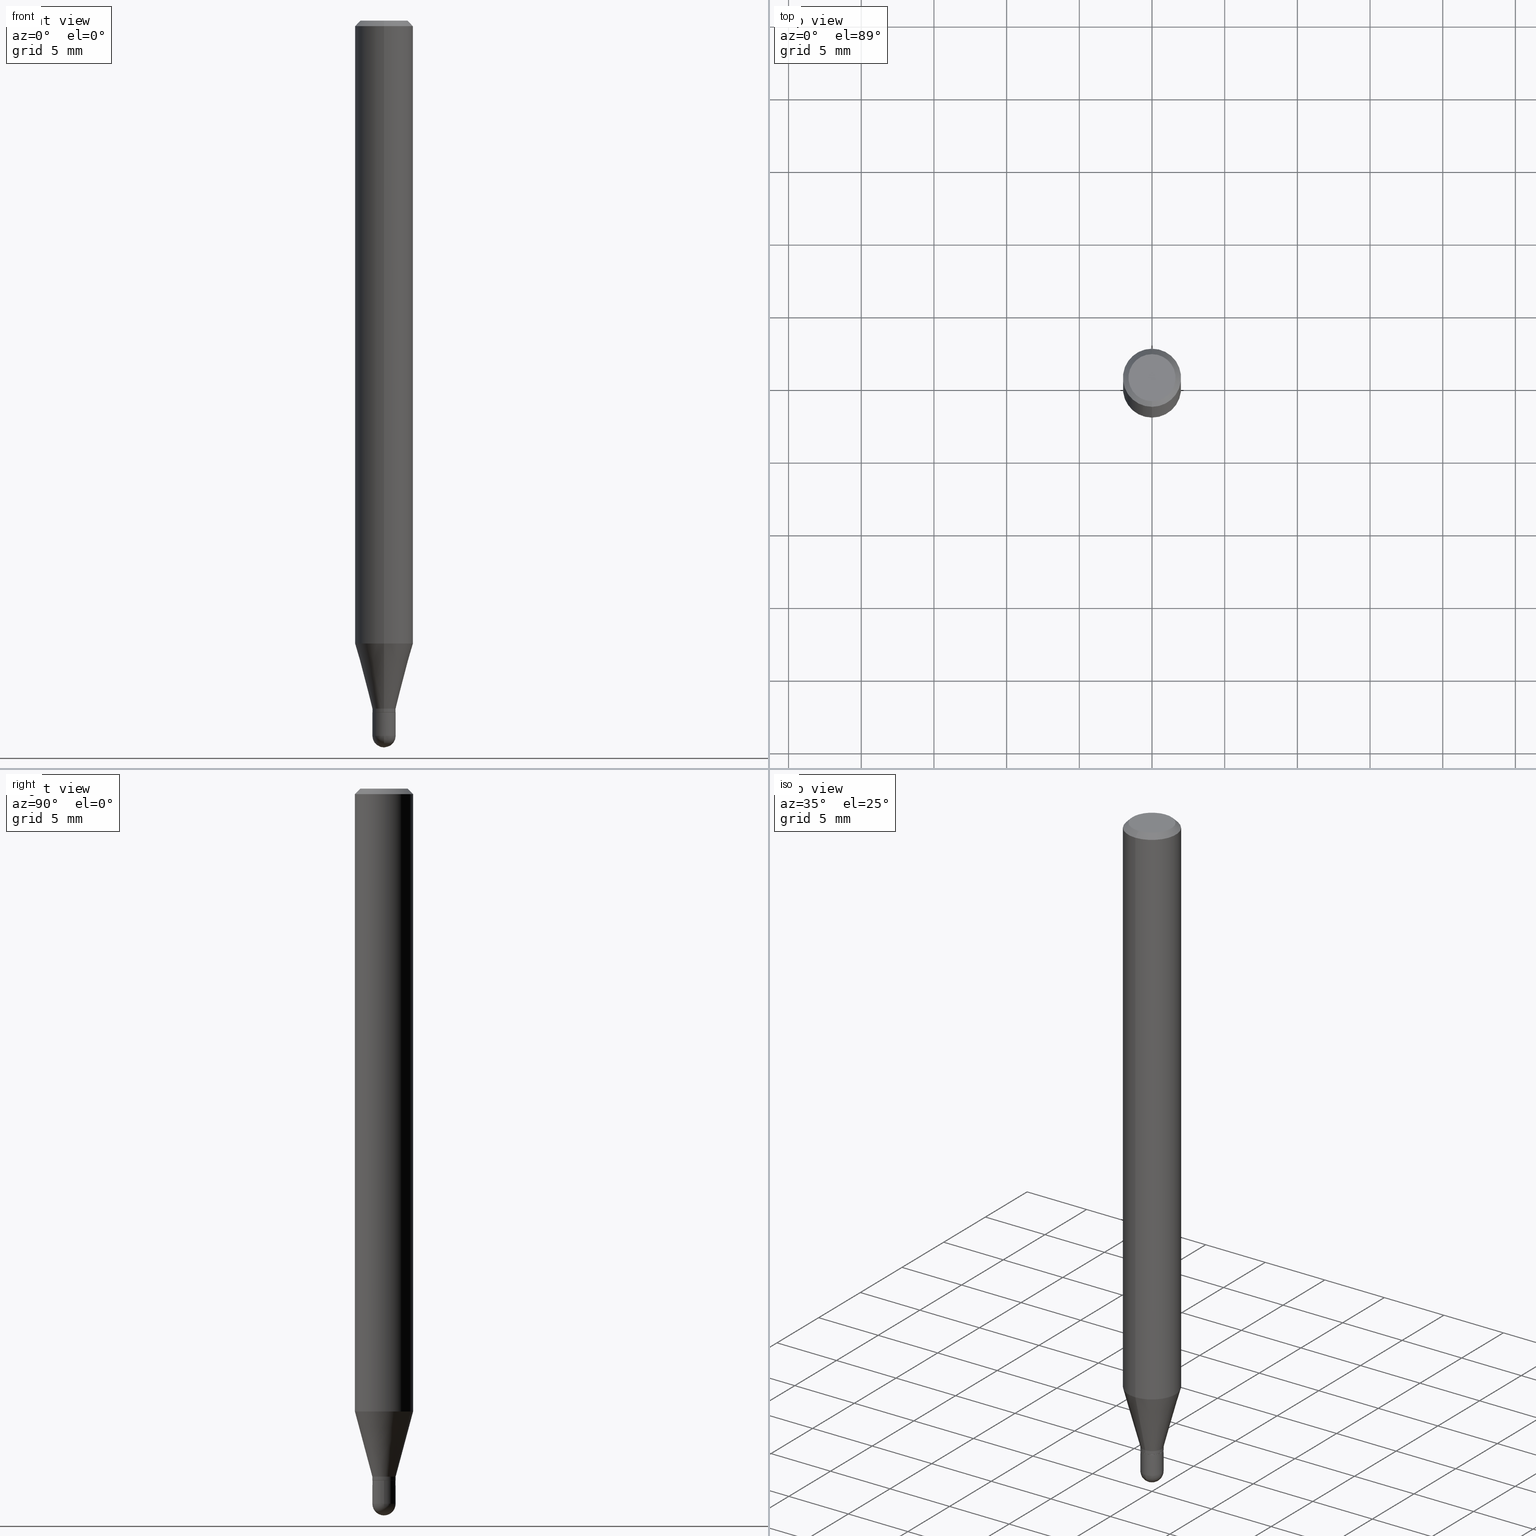
[diagram: canonical four-view strip — front | top / right | iso, engineering-drawing reading convention]
A machine part, canonical four-view strip (front | top / right | iso — engineering-drawing reading convention). The complete STEP part file that produces these views, byte-faithful:
ISO-10303-21;
HEADER;
FILE_DESCRIPTION (( 'STEP AP203' ),
    '1' );
FILE_NAME ('02015.STEP',
    '2024-03-07T19:55:30',
    ( '' ),
    ( '' ),
    'SwSTEP 2.0',
    'SolidWorks 2023',
    '' );
FILE_SCHEMA (( 'CONFIG_CONTROL_DESIGN' ));
ENDSEC;

DATA;
#1 = CIRCLE ( 'NONE', #275, 0.06375000000000000111 ) ;
#2 = DIRECTION ( 'NONE',  ( -6.982962677686264344E-15, -1.000000000000000000, 3.469013325287953293E-15 ) ) ;
#3 = LINE ( 'NONE', #103, #303 ) ;
#4 = APPLICATION_PROTOCOL_DEFINITION ( 'international standard', 'config_control_design', 1994, #453 ) ;
#5 = CARTESIAN_POINT ( 'NONE',  ( 4.125821572559714249E-29, -5.890800079852744300E-15, -1.687160599342371059 ) ) ;
#6 = PERSON_AND_ORGANIZATION ( #81, #316 ) ;
#7 = ORIENTED_EDGE ( 'NONE', *, *, #272, .T. ) ;
#8 = DATE_AND_TIME ( #90, #508 ) ;
#9 = ORIENTED_EDGE ( 'NONE', *, *, #473, .F. ) ;
#10 = CARTESIAN_POINT ( 'NONE',  ( 0.000000000000000000, 0.000000000000000000, 0.000000000000000000 ) ) ;
#11 = CARTESIAN_POINT ( 'NONE',  ( 2.202682480856768593E-16, 0.03099999999999345640, -1.874000000000000110 ) ) ;
#12 = AXIS2_PLACEMENT_3D ( 'NONE', #80, #263, #504 ) ;
#13 = AXIS2_PLACEMENT_3D ( 'NONE', #391, #201, #87 ) ;
#14 = ORIENTED_EDGE ( 'NONE', *, *, #306, .T. ) ;
#15 = DIRECTION ( 'NONE',  ( -6.982962677686265922E-15, -1.000000000000000000, 0.000000000000000000 ) ) ;
#16 = DATE_AND_TIME ( #111, #109 ) ;
#17 = DIRECTION ( 'NONE',  ( 1.000000000000000000, -6.982962677686255667E-15, 0.000000000000000000 ) ) ;
#18 = PERSON_AND_ORGANIZATION ( #81, #316 ) ;
#19 = FACE_OUTER_BOUND ( 'NONE', #37, .T. ) ;
#20 = DIRECTION ( 'NONE',  ( -2.445423141204159656E-29, 3.491546733694993225E-15, 1.000000000000000000 ) ) ;
#21 = VECTOR ( 'NONE', #170, 39.37007874015748143 ) ;
#22 = EDGE_LOOP ( 'NONE', ( #132, #7, #301, #9 ) ) ;
#23 = CARTESIAN_POINT ( 'NONE',  ( -0.03150000000000000022, -6.429196729401182217E-15, -1.874000000000000110 ) ) ;
#24 = EDGE_CURVE ( 'NONE', #384, #142, #265, .T. ) ;
#25 = ORIENTED_EDGE ( 'NONE', *, *, #318, .F. ) ;
#26 = DIRECTION ( 'NONE',  ( -2.445423141204159656E-29, 3.491546733694993619E-15, 1.000000000000000000 ) ) ;
#27 = ORIENTED_EDGE ( 'NONE', *, *, #54, .F. ) ;
#28 = CARTESIAN_POINT ( 'NONE',  ( 0.000000000000000000, 0.000000000000000000, 0.000000000000000000 ) ) ;
#29 = DIRECTION ( 'NONE',  ( -1.000000000000000000, 6.982962677686265922E-15, -4.876176775795935793E-29 ) ) ;
#30 = VECTOR ( 'NONE', #383, 39.37007874015748143 ) ;
#31 = AXIS2_PLACEMENT_3D ( 'NONE', #124, #400, #52 ) ;
#32 = DIRECTION ( 'NONE',  ( -6.982962677686265922E-15, -1.000000000000000000, 0.000000000000000000 ) ) ;
#33 = CARTESIAN_POINT ( 'NONE',  ( 4.125821572559714249E-29, -5.890800079852744300E-15, -1.687160599342371059 ) ) ;
#34 = CYLINDRICAL_SURFACE ( 'NONE', #115, 0.07875000000000000056 ) ;
#35 = DIRECTION ( 'NONE',  ( 1.000000000000000000, -6.982962677686265922E-15, 4.883557194083112340E-29 ) ) ;
#36 = APPLICATION_PROTOCOL_DEFINITION ( 'international standard', 'config_control_design', 1994, #128 ) ;
#37 = EDGE_LOOP ( 'NONE', ( #64, #253, #444, #296, #104 ) ) ;
#38 = CONICAL_SURFACE ( 'NONE', #315, 0.03099999999999999978, 0.7853981633974739252 ) ;
#39 = VECTOR ( 'NONE', #273, 39.37007874015748143 ) ;
#40 = ORIENTED_EDGE ( 'NONE', *, *, #160, .T. ) ;
#41 = DIMENSIONAL_EXPONENTS ( 1.000000000000000000, 0.000000000000000000, 0.000000000000000000, 0.000000000000000000, 0.000000000000000000, 0.000000000000000000, 0.000000000000000000 ) ;
#42 = ADVANCED_FACE ( 'NONE', ( #509 ), #34, .T. ) ;
#43 = CARTESIAN_POINT ( 'NONE',  ( 5.595524044111203155E-16, 0.07874999999999994504, -0.01500000000000004108 ) ) ;
#44 = AXIS2_PLACEMENT_3D ( 'NONE', #179, #333, #317 ) ;
#45 = AXIS2_PLACEMENT_3D ( 'NONE', #209, #176, #330 ) ;
#46 = EDGE_CURVE ( 'NONE', #206, #414, #467, .T. ) ;
#47 = DIRECTION ( 'NONE',  ( -6.982962677686264344E-15, -1.000000000000000000, 3.496114991891765576E-15 ) ) ;
#48 = PERSON_AND_ORGANIZATION ( #81, #316 ) ;
#49 = EDGE_CURVE ( 'NONE', #320, #168, #3, .T. ) ;
#50 = DIRECTION ( 'NONE',  ( -6.982962677686265133E-15, -1.000000000000000000, 0.000000000000000000 ) ) ;
#51 = CARTESIAN_POINT ( 'NONE',  ( 4.582808542790945516E-29, -6.543036028992054911E-15, -1.874000000000000110 ) ) ;
#52 = DIRECTION ( 'NONE',  ( -6.982962677686265133E-15, -1.000000000000000000, 0.000000000000000000 ) ) ;
#53 = COORDINATED_UNIVERSAL_TIME_OFFSET ( 5, 0, .BEHIND. ) ;
#54 = EDGE_CURVE ( 'NONE', #485, #196, #145, .T. ) ;
#55 = ORIENTED_EDGE ( 'NONE', *, *, #377, .T. ) ;
#56 = CARTESIAN_POINT ( 'NONE',  ( -5.499083108677930499E-16, -0.07875000000000004219, -0.01499999999999948944 ) ) ;
#57 = ADVANCED_FACE ( 'NONE', ( #299 ), #345, .F. ) ;
#58 = DIRECTION ( 'NONE',  ( -2.445423141204159656E-29, 3.491546733694993619E-15, 1.000000000000000000 ) ) ;
#59 = CLOSED_SHELL ( 'NONE', ( #282, #246, #462, #42, #390, #393, #197, #494, #343, #57, #376, #229 ) ) ;
#60 = AXIS2_PLACEMENT_3D ( 'NONE', #349, #220, #29 ) ;
#61 = DIRECTION ( 'NONE',  ( 6.982962677686265922E-15, 1.000000000000000000, -3.491546733694993225E-15 ) ) ;
#62 = ORIENTED_EDGE ( 'NONE', *, *, #468, .F. ) ;
#63 = CARTESIAN_POINT ( 'NONE',  ( 5.595524044111199211E-16, 0.07874999999999408862, -1.687160599342371503 ) ) ;
#64 = ORIENTED_EDGE ( 'NONE', *, *, #328, .T. ) ;
#65 = CARTESIAN_POINT ( 'NONE',  ( 4.557046023633951500E-29, -6.506497338240621672E-15, -1.863499999999999934 ) ) ;
#66 = ORIENTED_EDGE ( 'NONE', *, *, #511, .F. ) ;
#67 = CARTESIAN_POINT ( 'NONE',  ( 4.582722966616595264E-29, -6.543158578944418780E-15, -1.874000000000000110 ) ) ;
#68 = PERSON_AND_ORGANIZATION_ROLE ( 'classification_officer' ) ;
#69 = CIRCLE ( 'NONE', #498, 0.03150000000000000716 ) ;
#70 = ORIENTED_EDGE ( 'NONE', *, *, #226, .T. ) ;
#71 = PRODUCT_DEFINITION_FORMATION_WITH_SPECIFIED_SOURCE ( 'ANY', '', #309, .NOT_KNOWN. ) ;
#72 = ORIENTED_EDGE ( 'NONE', *, *, #148, .F. ) ;
#73 = DIRECTION ( 'NONE',  ( -1.000000000000000000, 6.982962677686265922E-15, -4.883557194083112340E-29 ) ) ;
#74 = CARTESIAN_POINT ( 'NONE',  ( 4.582722966616595264E-29, -6.543158578944418780E-15, -1.874000000000000110 ) ) ;
#75 = EDGE_CURVE ( 'NONE', #507, #384, #395, .T. ) ;
#76 = CIRCLE ( 'NONE', #279, 0.03150000000000000022 ) ;
#77 = LOCAL_TIME ( 14, 55, 30.00000000000000000, #53 ) ;
#78 = ADVANCED_FACE ( 'NONE', ( #266 ), #295, .T. ) ;
#79 = ORIENTED_EDGE ( 'NONE', *, *, #149, .T. ) ;
#80 = CARTESIAN_POINT ( 'NONE',  ( 4.734179303769695037E-29, -6.766856990756487063E-15, -1.937000000000000055 ) ) ;
#81 = PERSON ( 'UNSPECIFIED', 'UNSPECIFIED', 'UNSPECIFIED', ('UNSPECIFIED'), ('UNSPECIFIED'), ('UNSPECIFIED') ) ;
#82 = PLANE ( 'NONE',  #60 ) ;
#83 = AXIS2_PLACEMENT_3D ( 'NONE', #10, #399, #97 ) ;
#84 = CIRCLE ( 'NONE', #472, 0.03150000000000000716 ) ;
#85 = CARTESIAN_POINT ( 'NONE',  ( -0.03150000000000000716, 2.238209617644316094E-16, -1.549464553430295502E-30 ) ) ;
#86 = ORIENTED_EDGE ( 'NONE', *, *, #94, .F. ) ;
#87 = DIRECTION ( 'NONE',  ( 6.982962677686264344E-15, 1.000000000000000000, -3.496114991891765576E-15 ) ) ;
#88 = AXIS2_PLACEMENT_3D ( 'NONE', #337, #73, #373 ) ;
#89 = AXIS2_PLACEMENT_3D ( 'NONE', #354, #233, #163 ) ;
#90 = CALENDAR_DATE ( 2024, 7, 3 ) ;
#91 = ORIENTED_EDGE ( 'NONE', *, *, #24, .T. ) ;
#92 = LINE ( 'NONE', #102, #108 ) ;
#93 = COORDINATED_UNIVERSAL_TIME_OFFSET ( 5, 0, .BEHIND. ) ;
#94 = EDGE_CURVE ( 'NONE', #401, #321, #463, .T. ) ;
#95 = CC_DESIGN_PERSON_AND_ORGANIZATION_ASSIGNMENT ( #281, #439, ( #71 ) ) ;
#96 =( NAMED_UNIT ( * ) SI_UNIT ( $, .STERADIAN. ) SOLID_ANGLE_UNIT ( ) );
#97 = DIRECTION ( 'NONE',  ( -6.982962677686265922E-15, -1.000000000000000000, 3.491546733694993619E-15 ) ) ;
#98 = CARTESIAN_POINT ( 'NONE',  ( 3.668134711806182014E-31, -5.237320100542408955E-17, -0.01499999999999976526 ) ) ;
#99 = CIRCLE ( 'NONE', #223, 0.07875000000000000056 ) ;
#100 = DATE_AND_TIME ( #292, #195 ) ;
#101 = ORIENTED_EDGE ( 'NONE', *, *, #435, .F. ) ;
#102 = CARTESIAN_POINT ( 'NONE',  ( -2.199633243470712885E-16, -0.03150000000000643258, -1.863499999999999934 ) ) ;
#103 = CARTESIAN_POINT ( 'NONE',  ( 0.03150000000000000716, -2.199633243471174122E-16, 1.535995684375720062E-30 ) ) ;
#104 = ORIENTED_EDGE ( 'NONE', *, *, #418, .T. ) ;
#105 = EDGE_LOOP ( 'NONE', ( #441, #203, #40, #250 ) ) ;
#106 = DIRECTION ( 'NONE',  ( 1.000000000000000000, -6.982962677686255667E-15, 0.000000000000000000 ) ) ;
#107 = ORIENTED_EDGE ( 'NONE', *, *, #318, .T. ) ;
#108 = VECTOR ( 'NONE', #402, 39.37007874015748854 ) ;
#109 = LOCAL_TIME ( 14, 55, 30.00000000000000000, #323 ) ;
#110 = FACE_OUTER_BOUND ( 'NONE', #370, .T. ) ;
#111 = CALENDAR_DATE ( 2024, 7, 3 ) ;
#112 = FACE_OUTER_BOUND ( 'NONE', #361, .T. ) ;
#113 = DIRECTION ( 'NONE',  ( -2.445468806185136877E-29, 3.491481338843145188E-15, 1.000000000000000000 ) ) ;
#114 = CARTESIAN_POINT ( 'NONE',  ( 4.581500255045993394E-29, -6.541412805577571825E-15, -1.873500000000000165 ) ) ;
#115 = AXIS2_PLACEMENT_3D ( 'NONE', #155, #347, #387 ) ;
#116 = CARTESIAN_POINT ( 'NONE',  ( 4.734179303769695037E-29, -6.766856990756487063E-15, -1.937000000000000055 ) ) ;
#117 = MECHANICAL_CONTEXT ( 'NONE', #128, 'mechanical' ) ;
#118 = DIRECTION ( 'NONE',  ( -2.445468806185136597E-29, 3.491481338843145583E-15, 1.000000000000000000 ) ) ;
#119 = AXIS2_PLACEMENT_3D ( 'NONE', #421, #182, #335 ) ;
#120 = CIRCLE ( 'NONE', #89, 0.03149999999999993083 ) ;
#121 = DIRECTION ( 'NONE',  ( -2.445468806185136597E-29, 3.491481338843145583E-15, 1.000000000000000000 ) ) ;
#122 = CC_DESIGN_DATE_AND_TIME_ASSIGNMENT ( #355, #165, ( #298 ) ) ;
#123 = CALENDAR_DATE ( 2024, 7, 3 ) ;
#124 = CARTESIAN_POINT ( 'NONE',  ( 4.557046023633951500E-29, -6.506497338240621672E-15, -1.863499999999999934 ) ) ;
#125 = COORDINATED_UNIVERSAL_TIME_OFFSET ( 5, 0, .BEHIND. ) ;
#126 = AXIS2_PLACEMENT_3D ( 'NONE', #351, #356, #47 ) ;
#127 = PERSON_AND_ORGANIZATION_ROLE ( 'creator' ) ;
#128 = APPLICATION_CONTEXT ( 'configuration controlled 3d designs of mechanical parts and assemblies' ) ;
#129 = CYLINDRICAL_SURFACE ( 'NONE', #479, 0.03149999999999992389 ) ;
#130 = ADVANCED_FACE ( 'NONE', ( #227 ), #302, .T. ) ;
#131 =( LENGTH_UNIT ( ) NAMED_UNIT ( * ) SI_UNIT ( $, .METRE. ) );
#132 = ORIENTED_EDGE ( 'NONE', *, *, #319, .F. ) ;
#133 = DIRECTION ( 'NONE',  ( -6.982962677686265133E-15, -1.000000000000000000, 0.000000000000000000 ) ) ;
#134 = DIRECTION ( 'NONE',  ( 2.445423141204159656E-29, -3.491546733694993619E-15, -1.000000000000000000 ) ) ;
#135 = VERTEX_POINT ( 'NONE', #417 ) ;
#136 = LINE ( 'NONE', #325, #362 ) ;
#137 = CARTESIAN_POINT ( 'NONE',  ( 2.238209617644760322E-16, 0.03149999999999327643, -1.873500000000000165 ) ) ;
#138 = AXIS2_PLACEMENT_3D ( 'NONE', #367, #371, #15 ) ;
#139 = SECURITY_CLASSIFICATION ( '', '', #242 ) ;
#140 = CYLINDRICAL_SURFACE ( 'NONE', #339, 0.03150000000000000716 ) ;
#141 = EDGE_CURVE ( 'NONE', #447, #178, #379, .T. ) ;
#142 = VERTEX_POINT ( 'NONE', #153 ) ;
#143 = FACE_OUTER_BOUND ( 'NONE', #437, .T. ) ;
#144 = ORIENTED_EDGE ( 'NONE', *, *, #300, .T. ) ;
#145 = LINE ( 'NONE', #261, #423 ) ;
#146 = LINE ( 'NONE', #342, #274 ) ;
#147 = VECTOR ( 'NONE', #20, 39.37007874015748143 ) ;
#148 = EDGE_CURVE ( 'NONE', #135, #332, #338, .T. ) ;
#149 = EDGE_CURVE ( 'NONE', #321, #401, #490, .T. ) ;
#150 = CARTESIAN_POINT ( 'NONE',  ( -4.888104823412213911E-16, -0.06375000000000000111, 4.576885571078046976E-16 ) ) ;
#151 = DIRECTION ( 'NONE',  ( 0.000000000000000000, 0.000000000000000000, 1.000000000000000000 ) ) ;
#152 = DIRECTION ( 'NONE',  ( -2.445423141204159656E-29, 3.491546733694993619E-15, 1.000000000000000000 ) ) ;
#153 = CARTESIAN_POINT ( 'NONE',  ( -2.199633243470712885E-16, -0.03150000000000643258, -1.863499999999999934 ) ) ;
#154 = DIRECTION ( 'NONE',  ( -2.445423141204159656E-29, 3.491546733694993619E-15, 1.000000000000000000 ) ) ;
#155 = CARTESIAN_POINT ( 'NONE',  ( 0.000000000000000000, 0.000000000000000000, 0.000000000000000000 ) ) ;
#156 = VECTOR ( 'NONE', #305, 39.37007874015748143 ) ;
#157 = DIRECTION ( 'NONE',  ( 1.000000000000000000, 0.000000000000000000, 0.000000000000000000 ) ) ;
#158 = CARTESIAN_POINT ( 'NONE',  ( 4.975360907851465623E-16, 0.06375000000000000111, 1.251634856169309859E-17 ) ) ;
#159 = EDGE_CURVE ( 'NONE', #135, #416, #327, .T. ) ;
#160 = EDGE_CURVE ( 'NONE', #447, #414, #146, .T. ) ;
#161 = AXIS2_PLACEMENT_3D ( 'NONE', #452, #420, #465 ) ;
#162 =( GEOMETRIC_REPRESENTATION_CONTEXT ( 3 ) GLOBAL_UNCERTAINTY_ASSIGNED_CONTEXT ( ( #344 ) ) GLOBAL_UNIT_ASSIGNED_CONTEXT ( ( #208, #285, #96 ) ) REPRESENTATION_CONTEXT ( 'NONE', 'WORKASPACE' ) );
#163 = DIRECTION ( 'NONE',  ( -6.982962677686265133E-15, -1.000000000000000000, 0.000000000000000000 ) ) ;
#164 = DIRECTION ( 'NONE',  ( -2.445423141204159656E-29, 3.491546733694993619E-15, 1.000000000000000000 ) ) ;
#165 = DATE_TIME_ROLE ( 'creation_date' ) ;
#166 = ORIENTED_EDGE ( 'NONE', *, *, #272, .F. ) ;
#167 = ADVANCED_FACE ( 'NONE', ( #110 ), #375, .T. ) ;
#168 = VERTEX_POINT ( 'NONE', #501 ) ;
#169 = LINE ( 'NONE', #244, #147 ) ;
#170 = DIRECTION ( 'NONE',  ( 5.024295867788190974E-15, 0.7071067811865681119, 0.7071067811865270336 ) ) ;
#171 = ORIENTED_EDGE ( 'NONE', *, *, #46, .F. ) ;
#172 = CARTESIAN_POINT ( 'NONE',  ( 2.238209617644766238E-16, 0.03149999999999342215, -1.863499999999999934 ) ) ;
#173 = ORIENTED_EDGE ( 'NONE', *, *, #306, .F. ) ;
#174 = MANIFOLD_SOLID_BREP ( 'Body-Move/Copy2[1]', #471 ) ;
#175 = FACE_OUTER_BOUND ( 'NONE', #398, .T. ) ;
#176 = DIRECTION ( 'NONE',  ( -2.445468806185136597E-29, 3.491481338843145583E-15, 1.000000000000000000 ) ) ;
#177 = AXIS2_PLACEMENT_3D ( 'NONE', #276, #118, #431 ) ;
#178 = VERTEX_POINT ( 'NONE', #150 ) ;
#179 = CARTESIAN_POINT ( 'NONE',  ( 0.000000000000000000, 0.000000000000000000, 0.000000000000000000 ) ) ;
#180 = APPROVAL_STATUS ( 'not_yet_approved' ) ;
#181 = ORIENTED_EDGE ( 'NONE', *, *, #149, .F. ) ;
#182 = DIRECTION ( 'NONE',  ( -1.000000000000000000, 7.105427357601001070E-15, -4.926315508542082329E-29 ) ) ;
#183 = CC_DESIGN_PERSON_AND_ORGANIZATION_ASSIGNMENT ( #48, #357, ( #298 ) ) ;
#184 = EDGE_LOOP ( 'NONE', ( #171, #243, #505, #66 ) ) ;
#185 = DIRECTION ( 'NONE',  ( 1.000000000000000000, -6.982962677686265133E-15, 4.876176775795935793E-29 ) ) ;
#186 = AXIS2_PLACEMENT_3D ( 'NONE', #51, #483, #106 ) ;
#187 = ORIENTED_EDGE ( 'NONE', *, *, #160, .F. ) ;
#188 = CIRCLE ( 'NONE', #268, 0.07875000000000000056 ) ;
#189 = DIRECTION ( 'NONE',  ( -2.445423141204159656E-29, 3.491546733694993619E-15, 1.000000000000000000 ) ) ;
#190 = DIRECTION ( 'NONE',  ( -2.445423141204159656E-29, 3.491546733694993619E-15, 1.000000000000000000 ) ) ;
#191 = DIRECTION ( 'NONE',  ( 6.982962677686266711E-15, 1.000000000000000000, 0.000000000000000000 ) ) ;
#192 = ORIENTED_EDGE ( 'NONE', *, *, #458, .F. ) ;
#193 = CIRCLE ( 'NONE', #138, 0.03149999999999992389 ) ;
#194 = EDGE_CURVE ( 'NONE', #168, #270, #76, .T. ) ;
#195 = LOCAL_TIME ( 14, 55, 30.00000000000000000, #326 ) ;
#196 = VERTEX_POINT ( 'NONE', #56 ) ;
#197 = ADVANCED_FACE ( 'NONE', ( #204 ), #365, .T. ) ;
#198 = PRODUCT_RELATED_PRODUCT_CATEGORY ( 'detail', '', ( #309 ) ) ;
#199 = CIRCLE ( 'NONE', #177, 0.03150000000000000716 ) ;
#200 = AXIS2_PLACEMENT_3D ( 'NONE', #450, #254, #61 ) ;
#201 = DIRECTION ( 'NONE',  ( 2.445423141204159656E-29, -3.491546733694993619E-15, -1.000000000000000000 ) ) ;
#202 = CALENDAR_DATE ( 2024, 7, 3 ) ;
#203 = ORIENTED_EDGE ( 'NONE', *, *, #141, .F. ) ;
#204 = FACE_OUTER_BOUND ( 'NONE', #184, .T. ) ;
#205 = FACE_OUTER_BOUND ( 'NONE', #22, .T. ) ;
#206 = VERTEX_POINT ( 'NONE', #63 ) ;
#207 = DIRECTION ( 'NONE',  ( -4.937700262164674260E-15, -0.7071067811865632269, 0.7071067811865319186 ) ) ;
#208 =( CONVERSION_BASED_UNIT ( 'INCH', #484 ) LENGTH_UNIT ( ) NAMED_UNIT ( #41 ) );
#209 = CARTESIAN_POINT ( 'NONE',  ( 4.736873077580609915E-29, -6.762999353339173038E-15, -1.937000000000000055 ) ) ;
#210 = APPROVAL ( #180, 'UNSPECIFIED' ) ;
#211 = ORIENTED_EDGE ( 'NONE', *, *, #300, .F. ) ;
#212 = DIRECTION ( 'NONE',  ( -2.445468806185136597E-29, 3.491481338843145583E-15, 1.000000000000000000 ) ) ;
#213 = ORIENTED_EDGE ( 'NONE', *, *, #319, .T. ) ;
#214 = DIRECTION ( 'NONE',  ( -4.851104656540964275E-15, -0.7071067811865500152, -0.7071067811865450192 ) ) ;
#215 = CIRCLE ( 'NONE', #126, 0.07875000000000000056 ) ;
#216 = DIRECTION ( 'NONE',  ( -2.445423141204159656E-29, 3.491546733694993225E-15, 1.000000000000000000 ) ) ;
#217 = APPROVAL_DATE_TIME ( #16, #210 ) ;
#218 = DESIGN_CONTEXT ( 'detailed design', #453, 'design' ) ;
#219 = DIRECTION ( 'NONE',  ( -6.982962677686265922E-15, -1.000000000000000000, 0.000000000000000000 ) ) ;
#220 = DIRECTION ( 'NONE',  ( 2.438088387897960049E-29, -3.491481338843145188E-15, -1.000000000000000000 ) ) ;
#221 = ORIENTED_EDGE ( 'NONE', *, *, #468, .T. ) ;
#222 = DIRECTION ( 'NONE',  ( -2.445468806185136597E-29, 3.491481338843145583E-15, 1.000000000000000000 ) ) ;
#223 = AXIS2_PLACEMENT_3D ( 'NONE', #5, #164, #476 ) ;
#224 = EDGE_CURVE ( 'NONE', #142, #485, #92, .T. ) ;
#225 = FACE_OUTER_BOUND ( 'NONE', #334, .T. ) ;
#226 = EDGE_CURVE ( 'NONE', #332, #320, #69, .T. ) ;
#227 = FACE_OUTER_BOUND ( 'NONE', #482, .T. ) ;
#228 = CONICAL_SURFACE ( 'NONE', #31, 0.03149999999999993083, 0.2617993877991507956 ) ;
#229 = ADVANCED_FACE ( 'NONE', ( #280 ), #129, .T. ) ;
#230 = APPROVAL ( #311, 'UNSPECIFIED' ) ;
#231 = CARTESIAN_POINT ( 'NONE',  ( 3.916866830877983711E-16, 0.03149999999999342215, -1.863499999999999934 ) ) ;
#232 = EDGE_CURVE ( 'NONE', #384, #507, #193, .T. ) ;
#233 = DIRECTION ( 'NONE',  ( -2.445423141204159656E-29, 3.491546733694993619E-15, 1.000000000000000000 ) ) ;
#234 = LINE ( 'NONE', #85, #39 ) ;
#235 = PERSON_AND_ORGANIZATION ( #81, #316 ) ;
#236 = CONICAL_SURFACE ( 'NONE', #480, 0.03099999999999999978, 0.7853981633974739252 ) ;
#237 = PRODUCT_DEFINITION_SHAPE ( 'NONE', 'NONE',  #298 ) ;
#238 = APPROVAL_ROLE ( '' ) ;
#239 = ORIENTED_EDGE ( 'NONE', *, *, #374, .T. ) ;
#240 = DIRECTION ( 'NONE',  ( -2.445423141204159656E-29, 3.491546733694993619E-15, 1.000000000000000000 ) ) ;
#241 = FACE_OUTER_BOUND ( 'NONE', #366, .T. ) ;
#242 = SECURITY_CLASSIFICATION_LEVEL ( 'unclassified' ) ;
#243 = ORIENTED_EDGE ( 'NONE', *, *, #473, .T. ) ;
#244 = CARTESIAN_POINT ( 'NONE',  ( 2.238209617644309685E-16, 0.03149999999999992389, -1.099837221113920283E-16 ) ) ;
#245 = CARTESIAN_POINT ( 'NONE',  ( -5.499083108677523249E-16, -0.07875000000000592637, -1.687160599342370837 ) ) ;
#246 = ADVANCED_FACE ( 'NONE', ( #284 ), #38, .T. ) ;
#247 = CC_DESIGN_DATE_AND_TIME_ASSIGNMENT ( #100, #252, ( #139 ) ) ;
#248 = FACE_OUTER_BOUND ( 'NONE', #105, .T. ) ;
#249 = EDGE_CURVE ( 'NONE', #178, #196, #407, .T. ) ;
#250 = ORIENTED_EDGE ( 'NONE', *, *, #511, .T. ) ;
#251 = CARTESIAN_POINT ( 'NONE',  ( 4.736873077580609915E-29, -6.762999353339173038E-15, -1.937000000000000055 ) ) ;
#252 = DATE_TIME_ROLE ( 'classification_date' ) ;
#253 = ORIENTED_EDGE ( 'NONE', *, *, #392, .T. ) ;
#254 = DIRECTION ( 'NONE',  ( 2.445423141204159656E-29, -3.491546733694993225E-15, -1.000000000000000000 ) ) ;
#255 = PERSON_AND_ORGANIZATION ( #81, #316 ) ;
#256 = EDGE_LOOP ( 'NONE', ( #86, #181 ) ) ;
#257 = CARTESIAN_POINT ( 'NONE',  ( -5.749249787159544163E-45, 8.208712012788487763E-31, 2.351024528347489012E-16 ) ) ;
#258 = VECTOR ( 'NONE', #214, 39.37007874015748143 ) ;
#259 = APPROVAL_PERSON_ORGANIZATION ( #18, #210, #413 ) ;
#260 = ORIENTED_EDGE ( 'NONE', *, *, #159, .F. ) ;
#261 = CARTESIAN_POINT ( 'NONE',  ( -5.499083108677933457E-16, -0.07875000000000000056, 2.749593052784807303E-16 ) ) ;
#262 = ORIENTED_EDGE ( 'NONE', *, *, #94, .T. ) ;
#263 = DIRECTION ( 'NONE',  ( -1.000000000000000000, 6.982962677686265922E-15, -4.883557194083112340E-29 ) ) ;
#264 = CARTESIAN_POINT ( 'NONE',  ( 4.582722966616595264E-29, -6.543158578944418780E-15, -1.874000000000000110 ) ) ;
#265 = LINE ( 'NONE', #269, #30 ) ;
#266 = FACE_OUTER_BOUND ( 'NONE', #324, .T. ) ;
#267 = CC_DESIGN_PERSON_AND_ORGANIZATION_ASSIGNMENT ( #235, #350, ( #309 ) ) ;
#268 = AXIS2_PLACEMENT_3D ( 'NONE', #443, #58, #403 ) ;
#269 = CARTESIAN_POINT ( 'NONE',  ( -2.199633243471168452E-16, -0.03149999999999992389, 1.099837221113920283E-16 ) ) ;
#270 = VERTEX_POINT ( 'NONE', #23 ) ;
#271 = CARTESIAN_POINT ( 'NONE',  ( 5.595524044110787031E-16, 0.07875000000000000056, -2.749593052784807303E-16 ) ) ;
#272 = EDGE_CURVE ( 'NONE', #461, #142, #389, .T. ) ;
#273 = DIRECTION ( 'NONE',  ( -2.445468806185136877E-29, 3.491481338843145188E-15, 1.000000000000000000 ) ) ;
#274 = VECTOR ( 'NONE', #457, 39.37007874015748143 ) ;
#275 = AXIS2_PLACEMENT_3D ( 'NONE', #340, #152, #297 ) ;
#276 = CARTESIAN_POINT ( 'NONE',  ( 4.736873077580609915E-29, -6.762999353339173038E-15, -1.937000000000000055 ) ) ;
#277 = ORIENTED_EDGE ( 'NONE', *, *, #148, .T. ) ;
#278 = DATE_AND_TIME ( #123, #77 ) ;
#279 = AXIS2_PLACEMENT_3D ( 'NONE', #378, #212, #17 ) ;
#280 = FACE_OUTER_BOUND ( 'NONE', #460, .T. ) ;
#281 = PERSON_AND_ORGANIZATION ( #81, #316 ) ;
#282 = ADVANCED_FACE ( 'NONE', ( #175 ), #440, .T. ) ;
#283 = ORIENTED_EDGE ( 'NONE', *, *, #75, .T. ) ;
#284 = FACE_OUTER_BOUND ( 'NONE', #290, .T. ) ;
#285 =( NAMED_UNIT ( * ) PLANE_ANGLE_UNIT ( ) SI_UNIT ( $, .RADIAN. ) );
#286 = CARTESIAN_POINT ( 'NONE',  ( 2.220446049250768155E-16, 0.03099999999999345640, -1.874000000000000110 ) ) ;
#287 = AXIS2_PLACEMENT_3D ( 'NONE', #28, #222, #185 ) ;
#288 = LINE ( 'NONE', #172, #380 ) ;
#289 = CARTESIAN_POINT ( 'NONE',  ( 0.000000000000000000, 0.000000000000000000, 0.000000000000000000 ) ) ;
#290 = EDGE_LOOP ( 'NONE', ( #262, #500, #495, #25 ) ) ;
#291 = PLANE ( 'NONE',  #200 ) ;
#292 = CALENDAR_DATE ( 2024, 7, 3 ) ;
#293 = ORIENTED_EDGE ( 'NONE', *, *, #75, .F. ) ;
#294 = ORIENTED_EDGE ( 'NONE', *, *, #46, .T. ) ;
#295 = SPHERICAL_SURFACE ( 'NONE', #88, 0.03149999999999982675 ) ;
#296 = ORIENTED_EDGE ( 'NONE', *, *, #49, .F. ) ;
#297 = DIRECTION ( 'NONE',  ( -6.982962677686264344E-15, -1.000000000000000000, 3.491546733694992831E-15 ) ) ;
#298 = PRODUCT_DEFINITION ( 'UNKNOWN', '', #71, #218 ) ;
#299 = FACE_OUTER_BOUND ( 'NONE', #256, .T. ) ;
#300 = EDGE_CURVE ( 'NONE', #270, #168, #454, .T. ) ;
#301 = ORIENTED_EDGE ( 'NONE', *, *, #224, .T. ) ;
#302 = SPHERICAL_SURFACE ( 'NONE', #12, 0.03149999999999982675 ) ;
#303 = VECTOR ( 'NONE', #113, 39.37007874015748143 ) ;
#304 = CONICAL_SURFACE ( 'NONE', #13, 0.07875000000000000056, 0.7853981633974483900 ) ;
#305 = DIRECTION ( 'NONE',  ( -2.445423141204159656E-29, 3.491546733694993225E-15, 1.000000000000000000 ) ) ;
#306 = EDGE_CURVE ( 'NONE', #507, #461, #169, .T. ) ;
#307 = FACE_OUTER_BOUND ( 'NONE', #388, .T. ) ;
#308 = CONICAL_SURFACE ( 'NONE', #499, 0.03149999999999993083, 0.2617993877991507956 ) ;
#309 = PRODUCT ( '02015', '02015', '', ( #117 ) ) ;
#310 = PERSON_AND_ORGANIZATION ( #81, #316 ) ;
#311 = APPROVAL_STATUS ( 'not_yet_approved' ) ;
#312 = ORIENTED_EDGE ( 'NONE', *, *, #377, .F. ) ;
#313 = CARTESIAN_POINT ( 'NONE',  ( -2.199633243470717816E-16, -0.03150000000000657135, -1.873500000000000165 ) ) ;
#314 = APPROVAL_DATE_TIME ( #8, #230 ) ;
#315 = AXIS2_PLACEMENT_3D ( 'NONE', #67, #412, #410 ) ;
#316 = ORGANIZATION ( 'UNSPECIFIED', 'UNSPECIFIED', '' ) ;
#317 = DIRECTION ( 'NONE',  ( -6.982962677686264344E-15, -1.000000000000000000, 3.491546733694993225E-15 ) ) ;
#318 = EDGE_CURVE ( 'NONE', #401, #384, #136, .T. ) ;
#319 = EDGE_CURVE ( 'NONE', #461, #206, #288, .T. ) ;
#320 = VERTEX_POINT ( 'NONE', #448 ) ;
#321 = VERTEX_POINT ( 'NONE', #286 ) ;
#322 = DIRECTION ( 'NONE',  ( 1.000000000000000000, -6.982962677686254878E-15, 0.000000000000000000 ) ) ;
#323 = COORDINATED_UNIVERSAL_TIME_OFFSET ( 5, 0, .BEHIND. ) ;
#324 = EDGE_LOOP ( 'NONE', ( #72, #464, #488, #348 ) ) ;
#325 = CARTESIAN_POINT ( 'NONE',  ( -2.164718430082284046E-16, -0.03100000000000654315, -1.874000000000000110 ) ) ;
#326 = COORDINATED_UNIVERSAL_TIME_OFFSET ( 5, 0, .BEHIND. ) ;
#327 = CIRCLE ( 'NONE', #445, 0.03149999999999982675 ) ;
#328 = EDGE_CURVE ( 'NONE', #416, #451, #491, .T. ) ;
#329 = ORIENTED_EDGE ( 'NONE', *, *, #328, .F. ) ;
#330 = DIRECTION ( 'NONE',  ( 1.000000000000000000, -6.982962677686254878E-15, 0.000000000000000000 ) ) ;
#331 = DIRECTION ( 'NONE',  ( -2.445468806185136597E-29, 3.491481338843145583E-15, 1.000000000000000000 ) ) ;
#332 = VERTEX_POINT ( 'NONE', #493 ) ;
#333 = DIRECTION ( 'NONE',  ( -2.445423141204159656E-29, 3.491546733694993619E-15, 1.000000000000000000 ) ) ;
#334 = EDGE_LOOP ( 'NONE', ( #101, #79, #107, #293 ) ) ;
#335 = DIRECTION ( 'NONE',  ( -7.105427357601001859E-15, -1.000000000000000000, 0.000000000000000000 ) ) ;
#336 = ORIENTED_EDGE ( 'NONE', *, *, #141, .T. ) ;
#337 = CARTESIAN_POINT ( 'NONE',  ( 4.734179303769695037E-29, -6.766856990756487063E-15, -1.937000000000000055 ) ) ;
#338 = CIRCLE ( 'NONE', #119, 0.03149999999999982675 ) ;
#339 = AXIS2_PLACEMENT_3D ( 'NONE', #289, #331, #386 ) ;
#340 = CARTESIAN_POINT ( 'NONE',  ( -5.749249787159544163E-45, 8.208712012788487763E-31, 2.351024528347489012E-16 ) ) ;
#341 = ORIENTED_EDGE ( 'NONE', *, *, #232, .T. ) ;
#342 = CARTESIAN_POINT ( 'NONE',  ( 5.499083108677937401E-16, 0.07874999999999994504, -0.01500000000000004108 ) ) ;
#343 = ADVANCED_FACE ( 'NONE', ( #143 ), #291, .F. ) ;
#344 = UNCERTAINTY_MEASURE_WITH_UNIT (LENGTH_MEASURE( 1.000000000000000082E-05 ), #208, 'distance_accuracy_value', 'NONE');
#345 = PLANE ( 'NONE',  #161 ) ;
#346 = CIRCLE ( 'NONE', #415, 0.07875000000000000056 ) ;
#347 = DIRECTION ( 'NONE',  ( -2.445423141204159656E-29, 3.491546733694993619E-15, 1.000000000000000000 ) ) ;
#348 = ORIENTED_EDGE ( 'NONE', *, *, #226, .F. ) ;
#349 = CARTESIAN_POINT ( 'NONE',  ( 2.199633243471632155E-16, 0.03149999999999345685, -1.874000000000000110 ) ) ;
#350 = PERSON_AND_ORGANIZATION_ROLE ( 'design_owner' ) ;
#351 = CARTESIAN_POINT ( 'NONE',  ( 3.668134711806182014E-31, -5.237320100542408955E-17, -0.01499999999999976526 ) ) ;
#352 = CC_DESIGN_APPROVAL ( #230, ( #71 ) ) ;
#353 = ADVANCED_FACE ( 'NONE', ( #19 ), #140, .T. ) ;
#354 = CARTESIAN_POINT ( 'NONE',  ( 4.557046023633951500E-29, -6.506497338240621672E-15, -1.863499999999999934 ) ) ;
#355 = DATE_AND_TIME ( #202, #455 ) ;
#356 = DIRECTION ( 'NONE',  ( -2.445423141204159656E-29, 3.491546733694993619E-15, 1.000000000000000000 ) ) ;
#357 = PERSON_AND_ORGANIZATION_ROLE ( 'creator' ) ;
#358 = ADVANCED_FACE ( 'NONE', ( #112 ), #82, .F. ) ;
#359 = CARTESIAN_POINT ( 'NONE',  ( 0.000000000000000000, 0.000000000000000000, 0.000000000000000000 ) ) ;
#360 = LINE ( 'NONE', #11, #21 ) ;
#361 = EDGE_LOOP ( 'NONE', ( #368, #144 ) ) ;
#362 = VECTOR ( 'NONE', #207, 39.37007874015748143 ) ;
#363 = CONICAL_SURFACE ( 'NONE', #406, 0.07875000000000000056, 0.7853981633974483900 ) ;
#364 = ORIENTED_EDGE ( 'NONE', *, *, #249, .T. ) ;
#365 = CYLINDRICAL_SURFACE ( 'NONE', #44, 0.07875000000000000056 ) ;
#366 = EDGE_LOOP ( 'NONE', ( #221, #213, #312, #432 ) ) ;
#367 = CARTESIAN_POINT ( 'NONE',  ( 4.581500255045993394E-29, -6.541412805577571825E-15, -1.873500000000000165 ) ) ;
#368 = ORIENTED_EDGE ( 'NONE', *, *, #194, .T. ) ;
#369 = AXIS2_PLACEMENT_3D ( 'NONE', #114, #190, #219 ) ;
#370 = EDGE_LOOP ( 'NONE', ( #459, #372, #70, #510, #211 ) ) ;
#371 = DIRECTION ( 'NONE',  ( -2.445423141204159656E-29, 3.491546733694993619E-15, 1.000000000000000000 ) ) ;
#372 = ORIENTED_EDGE ( 'NONE', *, *, #458, .T. ) ;
#373 = DIRECTION ( 'NONE',  ( 6.982962677686265922E-15, 1.000000000000000000, 0.000000000000000000 ) ) ;
#374 = EDGE_CURVE ( 'NONE', #178, #447, #1, .T. ) ;
#375 = CYLINDRICAL_SURFACE ( 'NONE', #287, 0.03150000000000000716 ) ;
#376 = ADVANCED_FACE ( 'NONE', ( #225 ), #236, .T. ) ;
#377 = EDGE_CURVE ( 'NONE', #485, #206, #346, .T. ) ;
#378 = CARTESIAN_POINT ( 'NONE',  ( 4.582808542790945516E-29, -6.543036028992054911E-15, -1.874000000000000110 ) ) ;
#379 = CIRCLE ( 'NONE', #506, 0.06375000000000000111 ) ;
#380 = VECTOR ( 'NONE', #489, 39.37007874015748854 ) ;
#381 = DIRECTION ( 'NONE',  ( -6.982962677686265922E-15, -1.000000000000000000, 0.000000000000000000 ) ) ;
#382 = CARTESIAN_POINT ( 'NONE',  ( 4.582722966616595264E-29, -6.543158578944418780E-15, -1.874000000000000110 ) ) ;
#383 = DIRECTION ( 'NONE',  ( -2.445423141204159656E-29, 3.491546733694993225E-15, 1.000000000000000000 ) ) ;
#384 = VERTEX_POINT ( 'NONE', #313 ) ;
#385 = DIRECTION ( 'NONE',  ( -6.982962677686265922E-15, -1.000000000000000000, 0.000000000000000000 ) ) ;
#386 = DIRECTION ( 'NONE',  ( 1.000000000000000000, -6.982962677686265133E-15, 4.876176775795935793E-29 ) ) ;
#387 = DIRECTION ( 'NONE',  ( -6.982962677686264344E-15, -1.000000000000000000, 3.491546733694993225E-15 ) ) ;
#388 = EDGE_LOOP ( 'NONE', ( #409, #364, #456, #187 ) ) ;
#389 = CIRCLE ( 'NONE', #404, 0.03149999999999993083 ) ;
#390 = ADVANCED_FACE ( 'NONE', ( #241 ), #228, .T. ) ;
#391 = CARTESIAN_POINT ( 'NONE',  ( 3.668134711806182014E-31, -5.237320100542408955E-17, -0.01499999999999976526 ) ) ;
#392 = EDGE_CURVE ( 'NONE', #451, #270, #234, .T. ) ;
#393 = ADVANCED_FACE ( 'NONE', ( #205 ), #308, .T. ) ;
#394 = CARTESIAN_POINT ( 'NONE',  ( 4.736873077580609915E-29, -6.762999353339173038E-15, -1.937000000000000055 ) ) ;
#395 = CIRCLE ( 'NONE', #369, 0.03149999999999992389 ) ;
#396 = APPROVAL_PERSON_ORGANIZATION ( #310, #487, #238 ) ;
#397 = APPROVAL_DATE_TIME ( #278, #487 ) ;
#398 = EDGE_LOOP ( 'NONE', ( #341, #14, #62, #492 ) ) ;
#399 = DIRECTION ( 'NONE',  ( -2.445423141204159656E-29, 3.491546733694993619E-15, 1.000000000000000000 ) ) ;
#400 = DIRECTION ( 'NONE',  ( -2.445423141204159656E-29, 3.491546733694993619E-15, 1.000000000000000000 ) ) ;
#401 = VERTEX_POINT ( 'NONE', #512 ) ;
#402 = DIRECTION ( 'NONE',  ( -1.807323732225333295E-15, -0.2588190451025186301, 0.9659258262890687563 ) ) ;
#403 = DIRECTION ( 'NONE',  ( -6.982962677686264344E-15, -1.000000000000000000, 3.496114991891765576E-15 ) ) ;
#404 = AXIS2_PLACEMENT_3D ( 'NONE', #65, #240, #133 ) ;
#405 = ADVANCED_BREP_SHAPE_REPRESENTATION ( '02015', ( #174, #502, #466 ), #162 ) ;
#406 = AXIS2_PLACEMENT_3D ( 'NONE', #98, #134, #408 ) ;
#407 = LINE ( 'NONE', #486, #258 ) ;
#408 = DIRECTION ( 'NONE',  ( 6.982962677686264344E-15, 1.000000000000000000, -3.496114991891765576E-15 ) ) ;
#409 = ORIENTED_EDGE ( 'NONE', *, *, #374, .F. ) ;
#410 = DIRECTION ( 'NONE',  ( -6.982962677686265922E-15, -1.000000000000000000, 0.000000000000000000 ) ) ;
#411 = SHAPE_DEFINITION_REPRESENTATION ( #237, #405 ) ;
#412 = DIRECTION ( 'NONE',  ( -2.445423141204159656E-29, 3.491546733694993619E-15, 1.000000000000000000 ) ) ;
#413 = APPROVAL_ROLE ( '' ) ;
#414 = VERTEX_POINT ( 'NONE', #43 ) ;
#415 = AXIS2_PLACEMENT_3D ( 'NONE', #33, #154, #2 ) ;
#416 = VERTEX_POINT ( 'NONE', #429 ) ;
#417 = CARTESIAN_POINT ( 'NONE',  ( 4.812558458069983555E-29, -6.874909834221388325E-15, -1.968500000000000139 ) ) ;
#418 = EDGE_CURVE ( 'NONE', #320, #416, #84, .T. ) ;
#419 = CC_DESIGN_PERSON_AND_ORGANIZATION_ASSIGNMENT ( #255, #68, ( #139 ) ) ;
#420 = DIRECTION ( 'NONE',  ( -2.445423141204159656E-29, 3.491546733694993225E-15, 1.000000000000000000 ) ) ;
#421 = CARTESIAN_POINT ( 'NONE',  ( 4.734179303769695037E-29, -6.766856990756487063E-15, -1.937000000000000055 ) ) ;
#422 = DIRECTION ( 'NONE',  ( -2.445423141204159656E-29, 3.491546733694993619E-15, 1.000000000000000000 ) ) ;
#423 = VECTOR ( 'NONE', #216, 39.37007874015748143 ) ;
#424 = APPROVAL_PERSON_ORGANIZATION ( #6, #230, #477 ) ;
#425 = ORIENTED_EDGE ( 'NONE', *, *, #430, .F. ) ;
#426 = DIRECTION ( 'NONE',  ( -2.445423141204159656E-29, 3.491546733694993619E-15, 1.000000000000000000 ) ) ;
#427 = AXIS2_PLACEMENT_3D ( 'NONE', #74, #189, #385 ) ;
#428 = CC_DESIGN_APPROVAL ( #210, ( #139 ) ) ;
#429 = CARTESIAN_POINT ( 'NONE',  ( 2.199633243471642015E-16, 0.03149999999999315153, -1.937000000000000055 ) ) ;
#430 = EDGE_CURVE ( 'NONE', #196, #414, #215, .T. ) ;
#431 = DIRECTION ( 'NONE',  ( 1.000000000000000000, -6.982962677686254878E-15, 0.000000000000000000 ) ) ;
#432 = ORIENTED_EDGE ( 'NONE', *, *, #224, .F. ) ;
#433 = DIRECTION ( 'NONE',  ( -2.445423141204159656E-29, 3.491546733694993619E-15, 1.000000000000000000 ) ) ;
#434 = AXIS2_PLACEMENT_3D ( 'NONE', #382, #26, #32 ) ;
#435 = EDGE_CURVE ( 'NONE', #321, #507, #360, .T. ) ;
#436 = CC_DESIGN_APPROVAL ( #487, ( #298 ) ) ;
#437 = EDGE_LOOP ( 'NONE', ( #336, #239 ) ) ;
#438 = DIRECTION ( 'NONE',  ( -2.445423141204159656E-29, 3.491546733694993619E-15, 1.000000000000000000 ) ) ;
#439 = PERSON_AND_ORGANIZATION_ROLE ( 'design_supplier' ) ;
#440 = CYLINDRICAL_SURFACE ( 'NONE', #83, 0.03149999999999992389 ) ;
#441 = ORIENTED_EDGE ( 'NONE', *, *, #249, .F. ) ;
#442 = DIRECTION ( 'NONE',  ( -6.982962677686265922E-15, -1.000000000000000000, 3.491546733694993619E-15 ) ) ;
#443 = CARTESIAN_POINT ( 'NONE',  ( 3.668134711806182014E-31, -5.237320100542408955E-17, -0.01499999999999976526 ) ) ;
#444 = ORIENTED_EDGE ( 'NONE', *, *, #194, .F. ) ;
#445 = AXIS2_PLACEMENT_3D ( 'NONE', #116, #35, #191 ) ;
#446 = CC_DESIGN_SECURITY_CLASSIFICATION ( #139, ( #71 ) ) ;
#447 = VERTEX_POINT ( 'NONE', #158 ) ;
#448 = CARTESIAN_POINT ( 'NONE',  ( 0.03150000000000001410, -6.872981015512730918E-15, -1.937000000000000055 ) ) ;
#449 = CARTESIAN_POINT ( 'NONE',  ( 0.000000000000000000, 0.000000000000000000, 0.000000000000000000 ) ) ;
#450 = CARTESIAN_POINT ( 'NONE',  ( 4.451638707024993845E-16, 0.06375000000000000111, -1.050348778556813828E-16 ) ) ;
#451 = VERTEX_POINT ( 'NONE', #469 ) ;
#452 = CARTESIAN_POINT ( 'NONE',  ( 4.582722966616595264E-29, -6.543158578944418780E-15, -1.874000000000000110 ) ) ;
#453 = APPLICATION_CONTEXT ( 'configuration controlled 3d designs of mechanical parts and assemblies' ) ;
#454 = CIRCLE ( 'NONE', #186, 0.03150000000000000022 ) ;
#455 = LOCAL_TIME ( 14, 55, 30.00000000000000000, #93 ) ;
#456 = ORIENTED_EDGE ( 'NONE', *, *, #430, .T. ) ;
#457 = DIRECTION ( 'NONE',  ( 4.937700262164548042E-15, 0.7071067811865451302, -0.7071067811865499042 ) ) ;
#458 = EDGE_CURVE ( 'NONE', #451, #332, #199, .T. ) ;
#459 = ORIENTED_EDGE ( 'NONE', *, *, #392, .F. ) ;
#460 = EDGE_LOOP ( 'NONE', ( #173, #283, #91, #166 ) ) ;
#461 = VERTEX_POINT ( 'NONE', #231 ) ;
#462 = ADVANCED_FACE ( 'NONE', ( #307 ), #304, .T. ) ;
#463 = CIRCLE ( 'NONE', #434, 0.03099999999999999978 ) ;
#464 = ORIENTED_EDGE ( 'NONE', *, *, #159, .T. ) ;
#465 = DIRECTION ( 'NONE',  ( -6.982962677686265922E-15, -1.000000000000000000, 3.491546733694993225E-15 ) ) ;
#466 = AXIS2_PLACEMENT_3D ( 'NONE', #449, #151, #157 ) ;
#467 = LINE ( 'NONE', #271, #156 ) ;
#468 = EDGE_CURVE ( 'NONE', #142, #461, #120, .T. ) ;
#469 = CARTESIAN_POINT ( 'NONE',  ( -0.03150000000000001410, -6.429196729401182217E-15, -1.937000000000000055 ) ) ;
#470 = CC_DESIGN_PERSON_AND_ORGANIZATION_ASSIGNMENT ( #481, #127, ( #71 ) ) ;
#471 = CLOSED_SHELL ( 'NONE', ( #353, #130, #358, #78, #167 ) ) ;
#472 = AXIS2_PLACEMENT_3D ( 'NONE', #394, #121, #478 ) ;
#473 = EDGE_CURVE ( 'NONE', #206, #485, #99, .T. ) ;
#474 = CARTESIAN_POINT ( 'NONE',  ( 4.557046023633951500E-29, -6.506497338240621672E-15, -1.863499999999999934 ) ) ;
#475 = APPROVAL_STATUS ( 'not_yet_approved' ) ;
#476 = DIRECTION ( 'NONE',  ( -6.982962677686264344E-15, -1.000000000000000000, 3.469013325287953293E-15 ) ) ;
#477 = APPROVAL_ROLE ( '' ) ;
#478 = DIRECTION ( 'NONE',  ( 1.000000000000000000, -6.982962677686254878E-15, 0.000000000000000000 ) ) ;
#479 = AXIS2_PLACEMENT_3D ( 'NONE', #359, #438, #442 ) ;
#480 = AXIS2_PLACEMENT_3D ( 'NONE', #264, #422, #381 ) ;
#481 = PERSON_AND_ORGANIZATION ( #81, #316 ) ;
#482 = EDGE_LOOP ( 'NONE', ( #260, #277, #192, #329 ) ) ;
#483 = DIRECTION ( 'NONE',  ( -2.445468806185136597E-29, 3.491481338843145583E-15, 1.000000000000000000 ) ) ;
#484 = LENGTH_MEASURE_WITH_UNIT ( LENGTH_MEASURE( 0.02539999999999999897 ), #131 );
#485 = VERTEX_POINT ( 'NONE', #245 ) ;
#486 = CARTESIAN_POINT ( 'NONE',  ( -5.402642173245076924E-16, -0.07875000000000004219, -0.01499999999999948944 ) ) ;
#487 = APPROVAL ( #475, 'UNSPECIFIED' ) ;
#488 = ORIENTED_EDGE ( 'NONE', *, *, #418, .F. ) ;
#489 = DIRECTION ( 'NONE',  ( 1.839019923739603471E-15, 0.2588190451025254024, 0.9659258262890669799 ) ) ;
#490 = CIRCLE ( 'NONE', #427, 0.03099999999999999978 ) ;
#491 = CIRCLE ( 'NONE', #45, 0.03150000000000000716 ) ;
#492 = ORIENTED_EDGE ( 'NONE', *, *, #24, .F. ) ;
#493 = CARTESIAN_POINT ( 'NONE',  ( -2.238209617643835875E-16, -0.03150000000000668238, -1.937000000000000055 ) ) ;
#494 = ADVANCED_FACE ( 'NONE', ( #248 ), #363, .T. ) ;
#495 = ORIENTED_EDGE ( 'NONE', *, *, #232, .F. ) ;
#496 = DIRECTION ( 'NONE',  ( -2.445468806185136597E-29, 3.491481338843145583E-15, 1.000000000000000000 ) ) ;
#497 = DIRECTION ( 'NONE',  ( -6.982962677686264344E-15, -1.000000000000000000, 3.491546733694992831E-15 ) ) ;
#498 = AXIS2_PLACEMENT_3D ( 'NONE', #251, #496, #322 ) ;
#499 = AXIS2_PLACEMENT_3D ( 'NONE', #474, #433, #50 ) ;
#500 = ORIENTED_EDGE ( 'NONE', *, *, #435, .T. ) ;
#501 = CARTESIAN_POINT ( 'NONE',  ( 0.03150000000000000022, -6.762999353339172249E-15, -1.874000000000000110 ) ) ;
#502 = MANIFOLD_SOLID_BREP ( 'Body-Move/Copy2[2]', #59 ) ;
#503 = EDGE_LOOP ( 'NONE', ( #55, #294, #425, #27 ) ) ;
#504 = DIRECTION ( 'NONE',  ( 6.982962677686265922E-15, 1.000000000000000000, 0.000000000000000000 ) ) ;
#505 = ORIENTED_EDGE ( 'NONE', *, *, #54, .T. ) ;
#506 = AXIS2_PLACEMENT_3D ( 'NONE', #257, #426, #497 ) ;
#507 = VERTEX_POINT ( 'NONE', #137 ) ;
#508 = LOCAL_TIME ( 14, 55, 30.00000000000000000, #125 ) ;
#509 = FACE_OUTER_BOUND ( 'NONE', #503, .T. ) ;
#510 = ORIENTED_EDGE ( 'NONE', *, *, #49, .T. ) ;
#511 = EDGE_CURVE ( 'NONE', #414, #196, #188, .T. ) ;
#512 = CARTESIAN_POINT ( 'NONE',  ( -2.164718430082284046E-16, -0.03100000000000654315, -1.874000000000000110 ) ) ;
ENDSEC;
END-ISO-10303-21;
